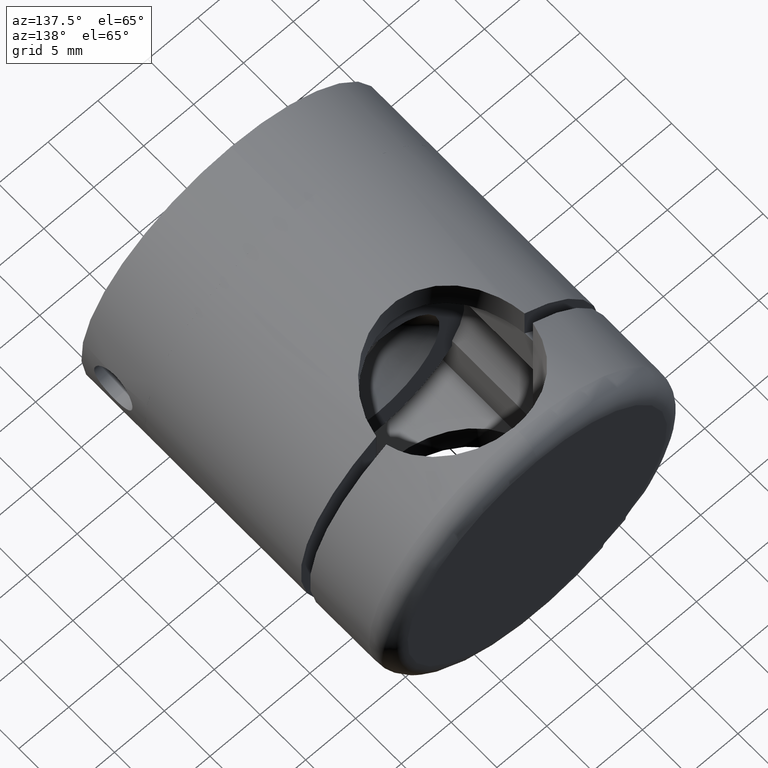
[diagram: clean part render]
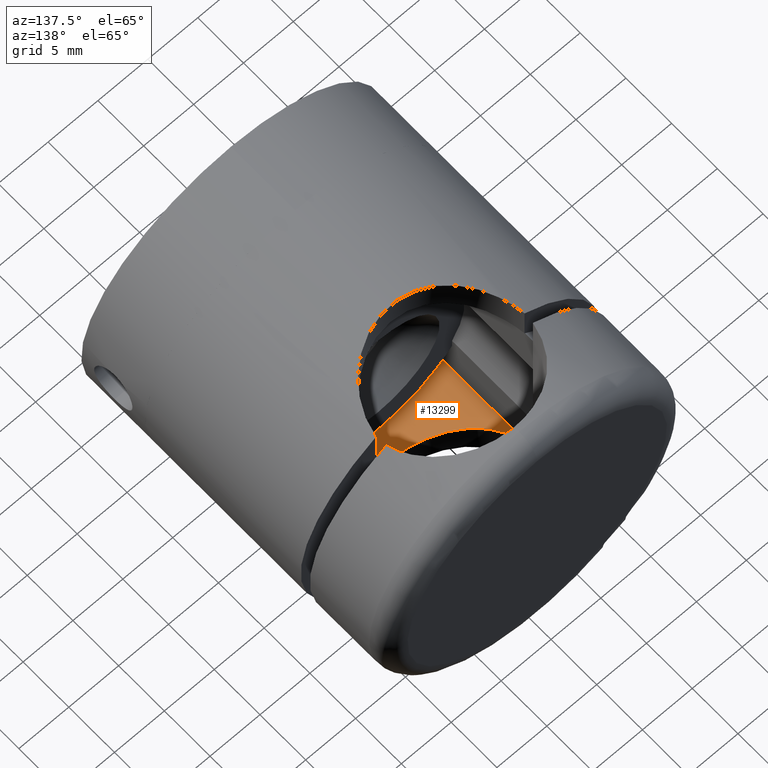
[diagram: same view with one face highlighted and labeled with its STEP entity id]
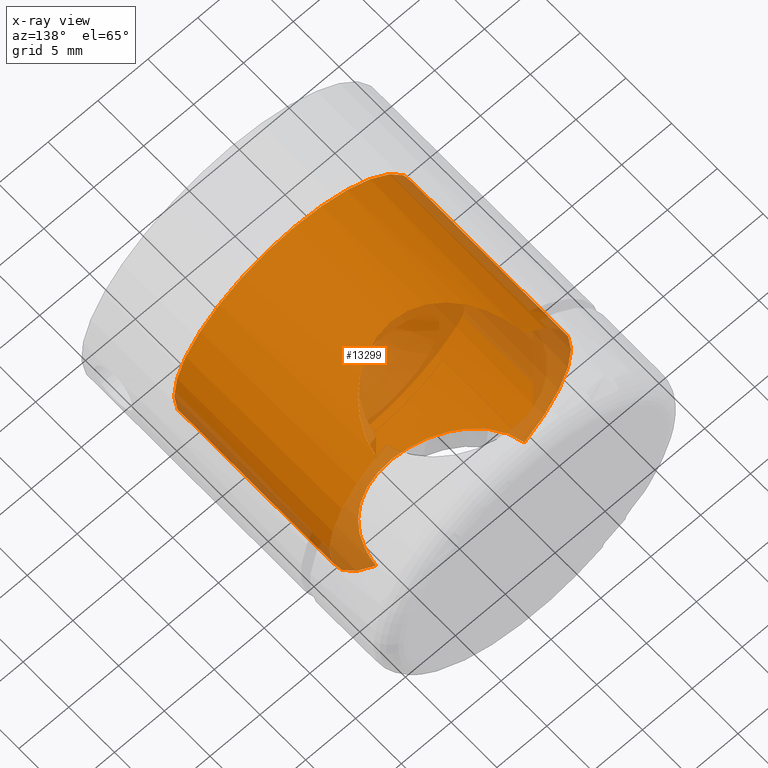
[diagram: x-ray of the same camera — body ghosted, the highlighted face saturated]
A machine part, auxiliary view. The second image highlights one B-rep face of the part: STEP entity #13299.
The next image is the same camera in x-ray: the body ghosted, the highlighted face saturated — about 22% of this face is hidden behind the body in this view.
In plain terms, the highlighted cylindrical surface (bore or boss wall) has radius 12.1 mm, axis along (0, 1, -0).
Its self-contained STEP definition (entity closure, byte-faithful):
#106 = ORIENTED_EDGE ( 'NONE', *, *, #15786, .F. ) ;
#162 = VERTEX_POINT ( 'NONE', #11002 ) ;
#237 = CARTESIAN_POINT ( 'NONE',  ( 7.433034373659253000, 0.0000000000000000000, -9.547774609824008600 ) ) ;
#399 = CARTESIAN_POINT ( 'NONE',  ( -4.287906709055678600, 5.169351422859433500, 11.32184140605151700 ) ) ;
#460 = CARTESIAN_POINT ( 'NONE',  ( -6.704379315736642500, 2.369065749826449400, 10.07358670783023800 ) ) ;
#597 = DIRECTION ( 'NONE',  ( 0.0000000000000000000, 0.0000000000000000000, 1.000000000000000000 ) ) ;
#638 = CARTESIAN_POINT ( 'NONE',  ( 0.4724070979116879500, 6.499340823553638700, -12.09959141980714400 ) ) ;
#690 = CARTESIAN_POINT ( 'NONE',  ( 0.9103202596978043900, 6.459001097932526700, 12.07444560178374700 ) ) ;
#697 = CARTESIAN_POINT ( 'NONE',  ( -5.290419277999674800, 4.320701883502318100, -10.88348276438546800 ) ) ;
#747 = CARTESIAN_POINT ( 'NONE',  ( 6.385953543325390700, 2.958148152001800900, 10.28071647677968600 ) ) ;
#757 = CARTESIAN_POINT ( 'NONE',  ( -7.267667455086091800, 0.9061549685232079800, -9.675795716198994300 ) ) ;
#1067 = B_SPLINE_CURVE_WITH_KNOTS ( 'NONE', 3,
 ( #2924, #8294, #2974, #9643, #12184, #7018, #9589, #1702, #3026, #13641, #3078, #12351, #3311, #3249, #15145, #15202, #12517, #8688, #638, #7125, #1867, #5909, #11303, #5964, #13975, #16626, #7237, #9816, #9862, #10037, #2094, #2035, #697, #13920, #13799, #11192, #16560, #11247, #4582, #14029, #9982, #757, #16442, #12580 ),
 .UNSPECIFIED., .F., .F.,
 ( 4, 2, 2, 2, 2, 2, 2, 2, 2, 2, 2, 2, 2, 2, 2, 2, 2, 2, 2, 2, 2, 4 ),
 ( 0.0000000000000000000, 0.001381553282009188100, 0.002072329923013783400, 0.002763106564018378900, 0.004144659846027567600, 0.005526213128036757700, 0.006907766410045946900, 0.008289319692055137000, 0.009670872974064328000, 0.01105242625607351700, 0.01243397953808270600, 0.01312475617908730200, 0.01381553282009189900, 0.01450630946109649500, 0.01519708610210109200, 0.01657863938411028100, 0.01726941602511487500, 0.01796019266611947200, 0.01934174594812865600, 0.02003252258913325300, 0.02072329923013784700, 0.02210485251214703400 ),
 .UNSPECIFIED. ) ;
#1702 = CARTESIAN_POINT ( 'NONE',  ( 6.387786704836729600, 2.955174478734803300, -10.27957127954841500 ) ) ;
#1867 = CARTESIAN_POINT ( 'NONE',  ( -0.9103202596978043900, 6.459001097932526700, -12.07444560178374700 ) ) ;
#1885 = CARTESIAN_POINT ( 'NONE',  ( 0.0000000000000000000, 17.00000000000000000, 0.0000000000000000000 ) ) ;
#1994 = CARTESIAN_POINT ( 'NONE',  ( 0.0000000000000000000, 0.0000000000000000000, 0.0000000000000000000 ) ) ;
#2035 = CARTESIAN_POINT ( 'NONE',  ( -5.130938656266875100, 4.474663636909650900, -10.95975385441399100 ) ) ;
#2086 = CARTESIAN_POINT ( 'NONE',  ( 3.106584920228745900, 5.830092861634216000, 11.69630516733490600 ) ) ;
#2094 = CARTESIAN_POINT ( 'NONE',  ( -4.635964713893531400, 4.911998384491692300, -11.18252097455661700 ) ) ;
#2140 = CARTESIAN_POINT ( 'NONE',  ( 0.0000000000000000000, 17.00000000000000000, 12.10000000000000000 ) ) ;
#2147 = CARTESIAN_POINT ( 'NONE',  ( 6.978373296587281300, 1.757275678786579300, 9.885540788002922200 ) ) ;
#2318 = AXIS2_PLACEMENT_3D ( 'NONE', #12267, #14834, #4323 ) ;
#2577 = B_SPLINE_CURVE_WITH_KNOTS ( 'NONE', 3,
 ( #12287, #16381, #12453, #12400, #4344, #4517, #460, #13687, #16326, #13629, #14971, #7010, #399, #9695, #11016, #12342, #4408, #9754, #8619, #3362, #690, #7230, #5904, #9856, #7342, #12635, #2086, #4690, #13967, #6012, #16683, #9919, #15308, #8680, #15196, #16742, #747, #13850, #10033, #2147, #11355, #15369, #16551, #3411 ),
 .UNSPECIFIED., .F., .F.,
 ( 4, 2, 2, 2, 2, 2, 2, 2, 2, 2, 2, 2, 2, 2, 2, 2, 2, 2, 2, 2, 2, 4 ),
 ( 0.0000000000000000000, 0.001381553282009188100, 0.002072329923013783400, 0.002763106564018378900, 0.004144659846027567600, 0.005526213128036757700, 0.006907766410045946900, 0.008289319692055137000, 0.009670872974064328000, 0.01105242625607351700, 0.01243397953808270600, 0.01312475617908730200, 0.01381553282009189900, 0.01450630946109649500, 0.01519708610210109200, 0.01657863938411028100, 0.01726941602511487500, 0.01796019266611947200, 0.01934174594812865600, 0.02003252258913325300, 0.02072329923013784700, 0.02210485251214703400 ),
 .UNSPECIFIED. ) ;
#2692 = DIRECTION ( 'NONE',  ( 0.0000000000000000000, 1.000000000000000000, 0.0000000000000000000 ) ) ;
#2801 = EDGE_CURVE ( 'NONE', #17240, #17240, #14930, .T. ) ;
#2924 = CARTESIAN_POINT ( 'NONE',  ( 7.433034373659253000, 0.0000000000000000000, -9.547774609824008600 ) ) ;
#2965 = EDGE_LOOP ( 'NONE', ( #106, #13264, #4183, #10857 ) ) ;
#2974 = CARTESIAN_POINT ( 'NONE',  ( 7.267922950506672000, 0.9050391060404532300, -9.675597607765430700 ) ) ;
#3026 = CARTESIAN_POINT ( 'NONE',  ( 6.146124214716414800, 3.320516346761881900, -10.42746976591293300 ) ) ;
#3078 = CARTESIAN_POINT ( 'NONE',  ( 5.296296914780158200, 4.328320597424202300, -10.88525027621322900 ) ) ;
#3249 = CARTESIAN_POINT ( 'NONE',  ( 3.530245071645919300, 5.632074385772681600, -11.58048386309773300 ) ) ;
#3311 = CARTESIAN_POINT ( 'NONE',  ( 4.287906709055678600, 5.169351422859433500, -11.32184140605151700 ) ) ;
#3362 = CARTESIAN_POINT ( 'NONE',  ( 0.4512396511243006400, 6.500644241078809700, 12.10039932273647000 ) ) ;
#3411 = CARTESIAN_POINT ( 'NONE',  ( 7.433034373659253000, 0.0000000000000000000, 9.547774609824008600 ) ) ;
#3691 = EDGE_CURVE ( 'NONE', #162, #4016, #2577, .T. ) ;
#4016 = VERTEX_POINT ( 'NONE', #12044 ) ;
#4183 = ORIENTED_EDGE ( 'NONE', *, *, #3691, .F. ) ;
#4323 = DIRECTION ( 'NONE',  ( 0.0000000000000000000, 0.0000000000000000000, -1.000000000000000000 ) ) ;
#4344 = CARTESIAN_POINT ( 'NONE',  ( -6.979226702225446400, 1.755088937874512000, 9.884935751312431400 ) ) ;
#4408 = CARTESIAN_POINT ( 'NONE',  ( -1.844509065358021800, 6.284116486468724000, 11.96719748488499000 ) ) ;
#4492 = CYLINDRICAL_SURFACE ( 'NONE', #2318, 12.10000000000000000 ) ;
#4517 = CARTESIAN_POINT ( 'NONE',  ( -6.802467336872967800, 2.166474150760043600, 10.00739717905748100 ) ) ;
#4582 = CARTESIAN_POINT ( 'NONE',  ( -6.801216285787243800, 2.169182870913697300, -10.00824997548193800 ) ) ;
#4605 = CARTESIAN_POINT ( 'NONE',  ( -7.433034373659253000, 0.0000000000000000000, -9.547774609824008600 ) ) ;
#4690 = CARTESIAN_POINT ( 'NONE',  ( 3.512054756203036200, 5.630724677934601600, 11.58101445571368900 ) ) ;
#5067 = DIRECTION ( 'NONE',  ( 0.0000000000000000000, 0.0000000000000000000, 1.000000000000000000 ) ) ;
#5091 = CIRCLE ( 'NONE', #5734, 12.10000000000000000 ) ;
#5542 = CIRCLE ( 'NONE', #5761, 12.10000000000000000 ) ;
#5734 = AXIS2_PLACEMENT_3D ( 'NONE', #1994, #11262, #597 ) ;
#5761 = AXIS2_PLACEMENT_3D ( 'NONE', #9242, #2692, #5067 ) ;
#5904 = CARTESIAN_POINT ( 'NONE',  ( 1.820740294575647500, 6.279237296299610800, 11.96431512509023400 ) ) ;
#5909 = CARTESIAN_POINT ( 'NONE',  ( -1.594801879411987800, 6.332151938821762200, -11.99663856489961900 ) ) ;
#5964 = CARTESIAN_POINT ( 'NONE',  ( -2.261244462426558000, 6.154660321585917700, -11.88893204261424000 ) ) ;
#6012 = CARTESIAN_POINT ( 'NONE',  ( 4.281616437942682700, 5.173871608858009500, 11.32429740889832500 ) ) ;
#6359 = FACE_OUTER_BOUND ( 'NONE', #2965, .T. ) ;
#6894 = ORIENTED_EDGE ( 'NONE', *, *, #2801, .T. ) ;
#7010 = CARTESIAN_POINT ( 'NONE',  ( -4.640208607627381600, 4.908487579418744100, 11.18069312086736200 ) ) ;
#7018 = CARTESIAN_POINT ( 'NONE',  ( 6.802467336872967800, 2.166474150760043600, -10.00739717905748100 ) ) ;
#7125 = CARTESIAN_POINT ( 'NONE',  ( -0.4512396511243006400, 6.500644241078809700, -12.10039932273647000 ) ) ;
#7230 = CARTESIAN_POINT ( 'NONE',  ( 1.594801879411987800, 6.332151938821762200, 11.99663856489961900 ) ) ;
#7237 = CARTESIAN_POINT ( 'NONE',  ( -3.106584920228745900, 5.830092861634216000, -11.69630516733490600 ) ) ;
#7342 = CARTESIAN_POINT ( 'NONE',  ( 2.476931936827229100, 6.082799924265901700, 11.84574986285529800 ) ) ;
#8294 = CARTESIAN_POINT ( 'NONE',  ( 7.370873389609881700, 0.4620447311394678700, -9.596167533832090900 ) ) ;
#8559 = AXIS2_PLACEMENT_3D ( 'NONE', #1885, #14937, #12199 ) ;
#8619 = CARTESIAN_POINT ( 'NONE',  ( -0.4724070979116879500, 6.499340823553638700, 12.09959141980714400 ) ) ;
#8680 = CARTESIAN_POINT ( 'NONE',  ( 5.593216513542786900, 4.001433164880639400, 10.73101403653626200 ) ) ;
#8688 = CARTESIAN_POINT ( 'NONE',  ( 0.9427413185010404800, 6.454649923841113700, -12.07175497352462700 ) ) ;
#9142 = EDGE_CURVE ( 'NONE', #10997, #162, #5091, .T. ) ;
#9242 = CARTESIAN_POINT ( 'NONE',  ( 0.0000000000000000000, 0.0000000000000000000, 0.0000000000000000000 ) ) ;
#9375 = EDGE_LOOP ( 'NONE', ( #6894 ) ) ;
#9589 = CARTESIAN_POINT ( 'NONE',  ( 6.704379315736642500, 2.369065749826449400, -10.07358670783023800 ) ) ;
#9643 = CARTESIAN_POINT ( 'NONE',  ( 7.058358826263528000, 1.545592304792543900, -9.828379518017310800 ) ) ;
#9695 = CARTESIAN_POINT ( 'NONE',  ( -3.530245071645919300, 5.632074385772681600, 11.58048386309773300 ) ) ;
#9754 = CARTESIAN_POINT ( 'NONE',  ( -0.9427413185010404800, 6.454649923841113700, 12.07175497352462700 ) ) ;
#9816 = CARTESIAN_POINT ( 'NONE',  ( -3.512054756203036200, 5.630724677934601600, -11.58101445571368900 ) ) ;
#9856 = CARTESIAN_POINT ( 'NONE',  ( 2.261244462426558000, 6.154660321585917700, 11.88893204261424000 ) ) ;
#9862 = CARTESIAN_POINT ( 'NONE',  ( -3.710195494336569100, 5.521823509179438500, -11.51889478967124000 ) ) ;
#9919 = CARTESIAN_POINT ( 'NONE',  ( 5.130938656266875100, 4.474663636909650900, 10.95975385441399100 ) ) ;
#9982 = CARTESIAN_POINT ( 'NONE',  ( -7.057675012871475100, 1.547514016276543100, -9.828872094880608800 ) ) ;
#10033 = CARTESIAN_POINT ( 'NONE',  ( 6.801216285787243800, 2.169182870913697300, 10.00824997548193800 ) ) ;
#10037 = CARTESIAN_POINT ( 'NONE',  ( -4.281616437942682700, 5.173871608858009500, -11.32429740889832500 ) ) ;
#10857 = ORIENTED_EDGE ( 'NONE', *, *, #9142, .F. ) ;
#10997 = VERTEX_POINT ( 'NONE', #4605 ) ;
#11002 = CARTESIAN_POINT ( 'NONE',  ( -7.433034373659253000, 0.0000000000000000000, 9.547774609824008600 ) ) ;
#11016 = CARTESIAN_POINT ( 'NONE',  ( -3.120889328124960100, 5.834713795883161900, 11.69855704201667200 ) ) ;
#11124 = FACE_OUTER_BOUND ( 'NONE', #9375, .T. ) ;
#11192 = CARTESIAN_POINT ( 'NONE',  ( -6.144316000566987200, 3.322991934113022500, -10.42851796852745100 ) ) ;
#11247 = CARTESIAN_POINT ( 'NONE',  ( -6.702901141645744700, 2.372009956687625400, -10.07457193972448700 ) ) ;
#11262 = DIRECTION ( 'NONE',  ( 0.0000000000000000000, 1.000000000000000000, 0.0000000000000000000 ) ) ;
#11303 = CARTESIAN_POINT ( 'NONE',  ( -1.820740294575647500, 6.279237296299610800, -11.96431512509023400 ) ) ;
#11355 = CARTESIAN_POINT ( 'NONE',  ( 7.057675012871475100, 1.547514016276543100, 9.828872094880608800 ) ) ;
#12044 = CARTESIAN_POINT ( 'NONE',  ( 7.433034373659253000, 0.0000000000000000000, 9.547774609824008600 ) ) ;
#12184 = CARTESIAN_POINT ( 'NONE',  ( 6.979226702225446400, 1.755088937874512000, -9.884935751312431400 ) ) ;
#12199 = DIRECTION ( 'NONE',  ( 0.0000000000000000000, 0.0000000000000000000, 1.000000000000000000 ) ) ;
#12267 = CARTESIAN_POINT ( 'NONE',  ( 0.0000000000000000000, 17.00000000000000000, 0.0000000000000000000 ) ) ;
#12287 = CARTESIAN_POINT ( 'NONE',  ( -7.433034373659253000, 0.0000000000000000000, 9.547774609824008600 ) ) ;
#12342 = CARTESIAN_POINT ( 'NONE',  ( -2.279664997857652000, 6.159356840358118000, 11.89114437559585200 ) ) ;
#12351 = CARTESIAN_POINT ( 'NONE',  ( 4.640208607627381600, 4.908487579418744100, -11.18069312086736200 ) ) ;
#12400 = CARTESIAN_POINT ( 'NONE',  ( -7.058358826263528000, 1.545592304792543900, 9.828379518017310800 ) ) ;
#12453 = CARTESIAN_POINT ( 'NONE',  ( -7.267922950506672000, 0.9050391060404532300, 9.675597607765430700 ) ) ;
#12517 = CARTESIAN_POINT ( 'NONE',  ( 1.844509065358021800, 6.284116486468724000, -11.96719748488499000 ) ) ;
#12580 = CARTESIAN_POINT ( 'NONE',  ( -7.433034373659253000, 0.0000000000000000000, -9.547774609824008600 ) ) ;
#12635 = CARTESIAN_POINT ( 'NONE',  ( 2.899602612185831200, 5.920516691567248000, 11.74943770247820000 ) ) ;
#13264 = ORIENTED_EDGE ( 'NONE', *, *, #14505, .F. ) ;
#13299 = ADVANCED_FACE ( 'NONE', ( #6359, #11124 ), #4492, .F. ) ;
#13629 = CARTESIAN_POINT ( 'NONE',  ( -5.601634317130489600, 4.006335720115676400, 10.72980249393706000 ) ) ;
#13641 = CARTESIAN_POINT ( 'NONE',  ( 5.601634317130489600, 4.006335720115676400, -10.72980249393706000 ) ) ;
#13687 = CARTESIAN_POINT ( 'NONE',  ( -6.387786704836729600, 2.955174478734803300, 10.27957127954841500 ) ) ;
#13799 = CARTESIAN_POINT ( 'NONE',  ( -5.736684297029831300, 3.836132015414672700, -10.65479257470046900 ) ) ;
#13850 = CARTESIAN_POINT ( 'NONE',  ( 6.702901141645744700, 2.372009956687625400, 10.07457193972448700 ) ) ;
#13920 = CARTESIAN_POINT ( 'NONE',  ( -5.593216513542786900, 4.001433164880639400, -10.73101403653626200 ) ) ;
#13967 = CARTESIAN_POINT ( 'NONE',  ( 3.710195494336569100, 5.521823509179438500, 11.51889478967124000 ) ) ;
#13975 = CARTESIAN_POINT ( 'NONE',  ( -2.476931936827229100, 6.082799924265901700, -11.84574986285529800 ) ) ;
#14029 = CARTESIAN_POINT ( 'NONE',  ( -6.978373296587281300, 1.757275678786579300, -9.885540788002922200 ) ) ;
#14505 = EDGE_CURVE ( 'NONE', #4016, #15734, #5542, .T. ) ;
#14834 = DIRECTION ( 'NONE',  ( -0.0000000000000000000, -1.000000000000000000, -0.0000000000000000000 ) ) ;
#14930 = CIRCLE ( 'NONE', #8559, 12.10000000000000000 ) ;
#14937 = DIRECTION ( 'NONE',  ( 0.0000000000000000000, 1.000000000000000000, 0.0000000000000000000 ) ) ;
#14971 = CARTESIAN_POINT ( 'NONE',  ( -5.296296914780158200, 4.328320597424202300, 10.88525027621322900 ) ) ;
#15145 = CARTESIAN_POINT ( 'NONE',  ( 3.120889328124960100, 5.834713795883161900, -11.69855704201667200 ) ) ;
#15196 = CARTESIAN_POINT ( 'NONE',  ( 5.736684297029831300, 3.836132015414672700, 10.65479257470046900 ) ) ;
#15202 = CARTESIAN_POINT ( 'NONE',  ( 2.279664997857652000, 6.159356840358118000, -11.89114437559585200 ) ) ;
#15308 = CARTESIAN_POINT ( 'NONE',  ( 5.290419277999674800, 4.320701883502318100, 10.88348276438546800 ) ) ;
#15369 = CARTESIAN_POINT ( 'NONE',  ( 7.267667455086091800, 0.9061549685232079800, 9.675795716198994300 ) ) ;
#15734 = VERTEX_POINT ( 'NONE', #237 ) ;
#15786 = EDGE_CURVE ( 'NONE', #15734, #10997, #1067, .T. ) ;
#16326 = CARTESIAN_POINT ( 'NONE',  ( -6.146124214716414800, 3.320516346761881900, 10.42746976591293300 ) ) ;
#16381 = CARTESIAN_POINT ( 'NONE',  ( -7.370873389609881700, 0.4620447311394678700, 9.596167533832090900 ) ) ;
#16442 = CARTESIAN_POINT ( 'NONE',  ( -7.370797457541449700, 0.4626091368141630500, -9.596226647677745800 ) ) ;
#16551 = CARTESIAN_POINT ( 'NONE',  ( 7.370797457541449700, 0.4626091368141630500, 9.596226647677745800 ) ) ;
#16560 = CARTESIAN_POINT ( 'NONE',  ( -6.385953543325390700, 2.958148152001800900, -10.28071647677968600 ) ) ;
#16626 = CARTESIAN_POINT ( 'NONE',  ( -2.899602612185831200, 5.920516691567248000, -11.74943770247820000 ) ) ;
#16683 = CARTESIAN_POINT ( 'NONE',  ( 4.635964713893531400, 4.911998384491692300, 11.18252097455661700 ) ) ;
#16742 = CARTESIAN_POINT ( 'NONE',  ( 6.144316000566987200, 3.322991934113022500, 10.42851796852745100 ) ) ;
#17240 = VERTEX_POINT ( 'NONE', #2140 ) ;